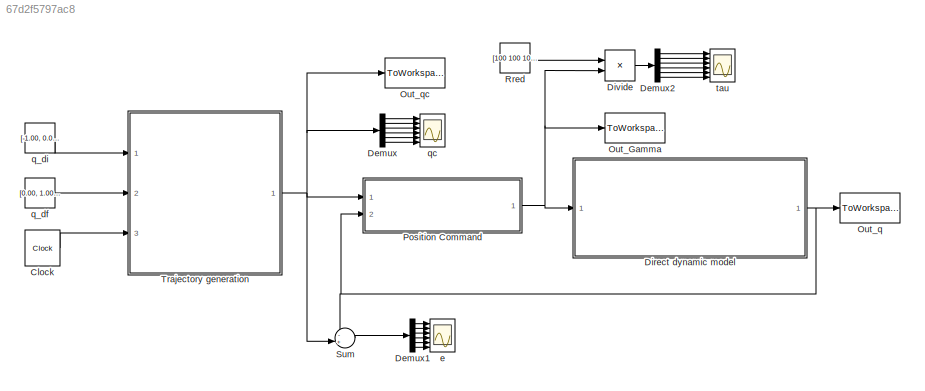
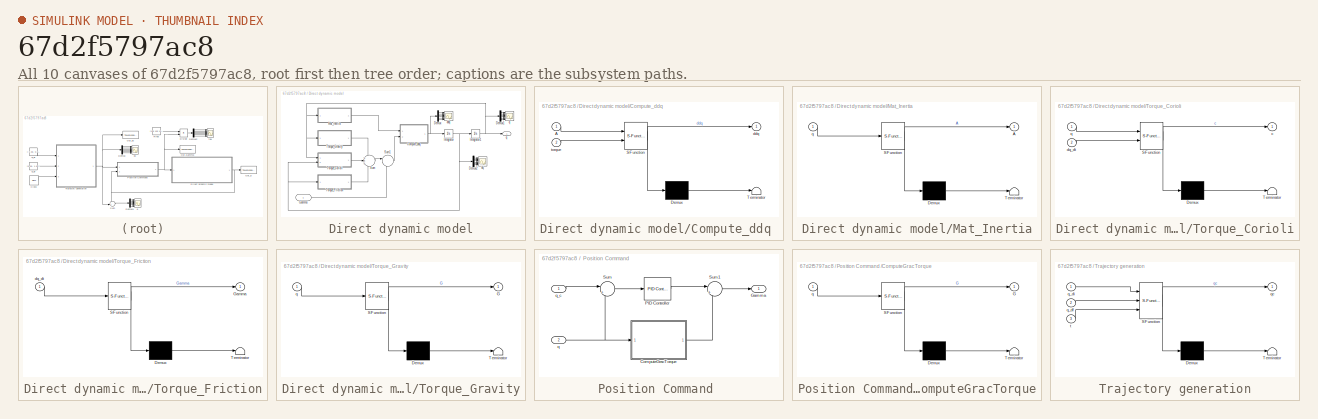
[diagram: thumbnail index - all 10 canvases of the model, root first then tree order]
MODEL slx_67d2f5797ac8
KIND model
CONFIG AbsTol = auto
CONFIG FixedStep = auto
CONFIG MaxStep = auto
CONFIG MinStep = auto
CONFIG RelTol = 1e-3
CONFIG SampleTimeConstraint = Unconstrained
CONFIG Solver = VariableStepAuto
CONFIG SolverMode = Auto
CONFIG SolverName = VariableStepAuto
CONFIG StartTime = 0.0
CONFIG StopTime = 500
BLOCK [Clock] Clock
  Decimation = 1
BLOCK [Demux] Demux
  DisplayOption = bar
  Outputs = 6
  Ports = [1, 6]
BLOCK [Demux] Demux1
  DisplayOption = bar
  Outputs = 6
  Ports = [1, 6]
BLOCK [Demux] Demux2
  DisplayOption = bar
  Outputs = 6
  Ports = [1, 6]
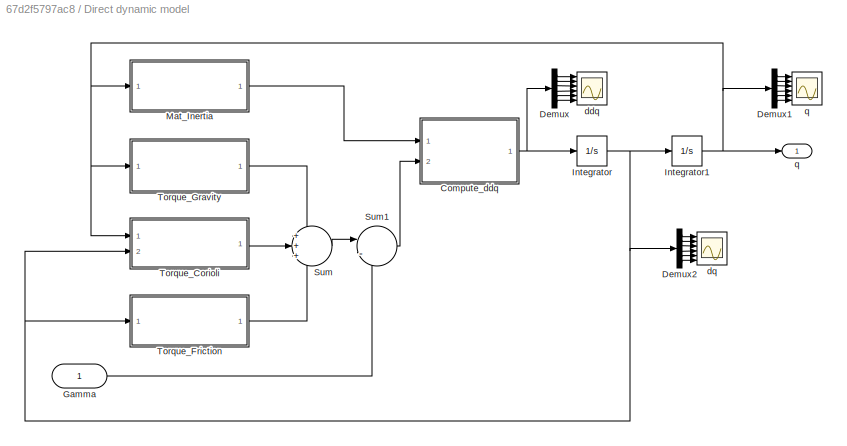
BLOCK [SubSystem] Direct dynamic model
  Ports = [1, 1]
  RequestExecContextInheritance = off
  Variant = off
BLOCK [SubSystem] Direct dynamic model/Compute_ddq 
  ErrorFcn = Stateflow.Translate.translate
  PermitHierarchicalResolution = ExplicitOnly
  Ports = [2, 1]
  RequestExecContextInheritance = off
  SFBlockType = MATLAB Function
  TreatAsAtomicUnit = on
  Variant = off
BLOCK [Demux] Direct dynamic model/Compute_ddq / Demux 
  Outputs = 1
  Ports = [1, 1]
BLOCK [S-Function] Direct dynamic model/Compute_ddq / SFunction 
  EnableBusSupport = on
  FunctionName = sf_sfun
  PortCounts = [2 2]
  Ports = [2, 2]
  SFunctionDeploymentMode = off
  Tag = Stateflow S-Function SimulinkQ20_total 5
BLOCK [Terminator] Direct dynamic model/Compute_ddq / Terminator 
BLOCK [Inport] Direct dynamic model/Compute_ddq /A
  IconDisplay = Port number
BLOCK [Outport] Direct dynamic model/Compute_ddq /ddq
  IconDisplay = Port number
BLOCK [Inport] Direct dynamic model/Compute_ddq /torque
  IconDisplay = Port number
  Port = 2
BLOCK [Demux] Direct dynamic model/Demux
  DisplayOption = bar
  Outputs = 6
  Ports = [1, 6]
BLOCK [Demux] Direct dynamic model/Demux1
  DisplayOption = bar
  Outputs = 6
  Ports = [1, 6]
BLOCK [Demux] Direct dynamic model/Demux2
  DisplayOption = bar
  Outputs = 6
  Ports = [1, 6]
BLOCK [Inport] Direct dynamic model/Gamma
  IconDisplay = Port number
BLOCK [Integrator] Direct dynamic model/Integrator
  Ports = [1, 1]
BLOCK [Integrator] Direct dynamic model/Integrator1
  InitialCondition = [-1.00, 0.00, -1.00, -1.00, -1.00, -1.00]
  Ports = [1, 1]
BLOCK [SubSystem] Direct dynamic model/Mat_Inertia
  ErrorFcn = Stateflow.Translate.translate
  PermitHierarchicalResolution = ExplicitOnly
  Ports = [1, 1]
  RequestExecContextInheritance = off
  SFBlockType = MATLAB Function
  TreatAsAtomicUnit = on
  Variant = off
BLOCK [Demux] Direct dynamic model/Mat_Inertia/ Demux 
  Outputs = 1
  Ports = [1, 1]
BLOCK [S-Function] Direct dynamic model/Mat_Inertia/ SFunction 
  EnableBusSupport = on
  FunctionName = sf_sfun
  PortCounts = [1 2]
  Ports = [1, 2]
  SFunctionDeploymentMode = off
  Tag = Stateflow S-Function SimulinkQ20_total 3
BLOCK [Terminator] Direct dynamic model/Mat_Inertia/ Terminator 
BLOCK [Outport] Direct dynamic model/Mat_Inertia/A
  IconDisplay = Port number
BLOCK [Inport] Direct dynamic model/Mat_Inertia/q
  IconDisplay = Port number
BLOCK [Sum] Direct dynamic model/Sum
  IconShape = round
  InputSameDT = off
  Inputs = +++
  OutDataTypeStr = Inherit: Inherit via internal rule
  Ports = [3, 1]
  SaturateOnIntegerOverflow = off
BLOCK [Sum] Direct dynamic model/Sum1
  IconShape = round
  InputSameDT = off
  Inputs = |-+
  OutDataTypeStr = Inherit: Inherit via internal rule
  Ports = [2, 1]
  SaturateOnIntegerOverflow = off
BLOCK [SubSystem] Direct dynamic model/Torque_Corioli
  ErrorFcn = Stateflow.Translate.translate
  PermitHierarchicalResolution = ExplicitOnly
  Ports = [2, 1]
  RequestExecContextInheritance = off
  SFBlockType = MATLAB Function
  TreatAsAtomicUnit = on
  Variant = off
BLOCK [Demux] Direct dynamic model/Torque_Corioli/ Demux 
  Outputs = 1
  Ports = [1, 1]
BLOCK [S-Function] Direct dynamic model/Torque_Corioli/ SFunction 
  EnableBusSupport = on
  FunctionName = sf_sfun
  PortCounts = [2 2]
  Ports = [2, 2]
  SFunctionDeploymentMode = off
  Tag = Stateflow S-Function SimulinkQ20_total 4
BLOCK [Terminator] Direct dynamic model/Torque_Corioli/ Terminator 
BLOCK [Outport] Direct dynamic model/Torque_Corioli/c
  IconDisplay = Port number
BLOCK [Inport] Direct dynamic model/Torque_Corioli/dq_dt
  IconDisplay = Port number
  Port = 2
BLOCK [Inport] Direct dynamic model/Torque_Corioli/q
  IconDisplay = Port number
BLOCK [SubSystem] Direct dynamic model/Torque_Friction
  ErrorFcn = Stateflow.Translate.translate
  PermitHierarchicalResolution = ExplicitOnly
  Ports = [1, 1]
  RequestExecContextInheritance = off
  SFBlockType = MATLAB Function
  TreatAsAtomicUnit = on
  Variant = off
BLOCK [Demux] Direct dynamic model/Torque_Friction/ Demux 
  Outputs = 1
  Ports = [1, 1]
BLOCK [S-Function] Direct dynamic model/Torque_Friction/ SFunction 
  EnableBusSupport = on
  FunctionName = sf_sfun
  PortCounts = [1 2]
  Ports = [1, 2]
  SFunctionDeploymentMode = off
  Tag = Stateflow S-Function SimulinkQ20_total 6
BLOCK [Terminator] Direct dynamic model/Torque_Friction/ Terminator 
BLOCK [Outport] Direct dynamic model/Torque_Friction/Gamma
  IconDisplay = Port number
BLOCK [Inport] Direct dynamic model/Torque_Friction/dq_dt
  IconDisplay = Port number
BLOCK [SubSystem] Direct dynamic model/Torque_Gravity
  ErrorFcn = Stateflow.Translate.translate
  PermitHierarchicalResolution = ExplicitOnly
  Ports = [1, 1]
  RequestExecContextInheritance = off
  SFBlockType = MATLAB Function
  TreatAsAtomicUnit = on
  Variant = off
BLOCK [Demux] Direct dynamic model/Torque_Gravity/ Demux 
  Outputs = 1
  Ports = [1, 1]
BLOCK [S-Function] Direct dynamic model/Torque_Gravity/ SFunction 
  EnableBusSupport = on
  FunctionName = sf_sfun
  PortCounts = [1 2]
  Ports = [1, 2]
  SFunctionDeploymentMode = off
  Tag = Stateflow S-Function SimulinkQ20_total 7
BLOCK [Terminator] Direct dynamic model/Torque_Gravity/ Terminator 
BLOCK [Outport] Direct dynamic model/Torque_Gravity/G
  IconDisplay = Port number
BLOCK [Inport] Direct dynamic model/Torque_Gravity/q
  IconDisplay = Port number
BLOCK [Scope] Direct dynamic model/ddq
  NumInputPorts = 6
  Ports = [6]
  ScopeSpecificationString = Simulink.scopes.TimeScopeBlockCfg('CurrentConfiguration', extmgr.ConfigurationSet(extmgr.Configuration('Core','General UI',true),extmgr.Configuration('Core','Source UI',true),extmgr.Configuration('Sources','WiredSimulink',true,'DataLoggingLimitDataPoints',true,'DataLoggingSaveFormat','Array','DataLoggingDecimation','1','DataLoggingDecimateData',true,'DataLoggingVariableName','ScopeData1'),extmgr.C...<+4919ch>
BLOCK [Scope] Direct dynamic model/dq 
  NumInputPorts = 6
  Ports = [6]
  ScopeSpecificationString = Simulink.scopes.TimeScopeBlockCfg('CurrentConfiguration', extmgr.ConfigurationSet(extmgr.Configuration('Core','General UI',true),extmgr.Configuration('Core','Source UI',true),extmgr.Configuration('Sources','WiredSimulink',true,'DataLoggingVariableName','ScopeData2','DataLoggingLimitDataPoints',true,'DataLoggingSaveFormat','Array','DataLoggingDecimation','1','DataLoggingDecimateData',true),extmgr.C...<+4862ch>
BLOCK [Outport] Direct dynamic model/q
  IconDisplay = Port number
BLOCK [Scope] Direct dynamic model/q 
  NumInputPorts = 6
  Ports = [6]
  ScopeSpecificationString = Simulink.scopes.TimeScopeBlockCfg('CurrentConfiguration', extmgr.ConfigurationSet(extmgr.Configuration('Core','General UI',true),extmgr.Configuration('Core','Source UI',true),extmgr.Configuration('Sources','WiredSimulink',true,'DataLoggingVariableName','ScopeData3','DataLoggingLimitDataPoints',true,'DataLoggingSaveFormat','Array','DataLoggingDecimation','1','DataLoggingDecimateData',true),extmgr.C...<+4860ch>
BLOCK [Product] Divide
  InputSameDT = off
  Inputs = /*
  OutDataTypeStr = Inherit: Inherit via internal rule
  Ports = [2, 1]
  RndMeth = Floor
  SaturateOnIntegerOverflow = off
BLOCK [ToWorkspace] Out_Gamma
  FixptAsFi = on
  MaxDataPoints = inf
  Ports = [1]
  SampleTime = -1
  Save2DSignal = 3-D array (concatenate along third dimension)
  SaveFormat = Timeseries
  VariableName = Gamma
BLOCK [ToWorkspace] Out_q
  FixptAsFi = on
  MaxDataPoints = inf
  Ports = [1]
  SampleTime = -1
  Save2DSignal = 3-D array (concatenate along third dimension)
  SaveFormat = Timeseries
  VariableName = q
BLOCK [ToWorkspace] Out_qc
  FixptAsFi = on
  MaxDataPoints = inf
  Ports = [1]
  SampleTime = -1
  Save2DSignal = 3-D array (concatenate along third dimension)
  SaveFormat = Timeseries
  VariableName = qc
BLOCK [SubSystem] Position Command 
  Ports = [2, 1]
  RequestExecContextInheritance = off
  Variant = off
BLOCK [SubSystem] Position Command /ComputeGracTorque
  ErrorFcn = Stateflow.Translate.translate
  PermitHierarchicalResolution = ExplicitOnly
  Ports = [1, 1]
  RequestExecContextInheritance = off
  SFBlockType = MATLAB Function
  TreatAsAtomicUnit = on
  Variant = off
BLOCK [Demux] Position Command /ComputeGracTorque/ Demux 
  Outputs = 1
  Ports = [1, 1]
BLOCK [S-Function] Position Command /ComputeGracTorque/ SFunction 
  EnableBusSupport = on
  FunctionName = sf_sfun
  PortCounts = [1 2]
  Ports = [1, 2]
  SFunctionDeploymentMode = off
  Tag = Stateflow S-Function SimulinkQ20_total 1
BLOCK [Terminator] Position Command /ComputeGracTorque/ Terminator 
BLOCK [Outport] Position Command /ComputeGracTorque/G
  IconDisplay = Port number
BLOCK [Inport] Position Command /ComputeGracTorque/q
  IconDisplay = Port number
BLOCK [Outport] Position Command /Gamma
  IconDisplay = Port number
BLOCK [Reference] Position Command /PID Controller  REF=simulink/Continuous/PID Controller
  Ports = [1, 1]
  SourceBlock = simulink/Continuous/PID Controller
  SourceType = PID 1dof
BLOCK [Sum] Position Command /Sum
  IconShape = round
  InputSameDT = off
  Inputs = |+-
  OutDataTypeStr = Inherit: Inherit via internal rule
  Ports = [2, 1]
  SaturateOnIntegerOverflow = off
BLOCK [Sum] Position Command /Sum1
  IconShape = round
  InputSameDT = off
  Inputs = |++
  OutDataTypeStr = Inherit: Inherit via internal rule
  Ports = [2, 1]
  SaturateOnIntegerOverflow = off
BLOCK [Inport] Position Command /q
  IconDisplay = Port number
  Port = 2
BLOCK [Inport] Position Command /q_c
  IconDisplay = Port number
BLOCK [Constant] Rred
  Value = [100 100 100 70 70 70]
BLOCK [Sum] Sum
  IconShape = round
  InputSameDT = off
  Inputs = -+|
  OutDataTypeStr = Inherit: Inherit via internal rule
  Ports = [2, 1]
  SaturateOnIntegerOverflow = off
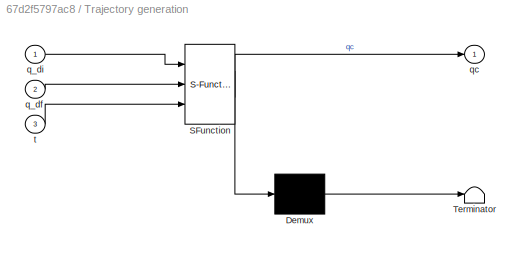
BLOCK [SubSystem] Trajectory generation
  ErrorFcn = Stateflow.Translate.translate
  PermitHierarchicalResolution = ExplicitOnly
  Ports = [3, 1]
  RequestExecContextInheritance = off
  SFBlockType = MATLAB Function
  TreatAsAtomicUnit = on
  Variant = off
BLOCK [Demux] Trajectory generation/ Demux 
  Outputs = 1
  Ports = [1, 1]
BLOCK [S-Function] Trajectory generation/ SFunction 
  EnableBusSupport = on
  FunctionName = sf_sfun
  PortCounts = [3 2]
  Ports = [3, 2]
  SFunctionDeploymentMode = off
  Tag = Stateflow S-Function SimulinkQ20_total 2
BLOCK [Terminator] Trajectory generation/ Terminator 
BLOCK [Inport] Trajectory generation/q_df
  IconDisplay = Port number
  Port = 2
BLOCK [Inport] Trajectory generation/q_di
  IconDisplay = Port number
BLOCK [Outport] Trajectory generation/qc
  IconDisplay = Port number
BLOCK [Inport] Trajectory generation/t
  IconDisplay = Port number
  Port = 3
BLOCK [Scope] e
  NumInputPorts = 6
  Ports = [6]
  ScopeSpecificationString = Simulink.scopes.TimeScopeBlockCfg('CurrentConfiguration', extmgr.ConfigurationSet(extmgr.Configuration('Core','General UI',true,'DisplayFullSourceName',true),extmgr.Configuration('Core','Source UI',true),extmgr.Configuration('Sources','WiredSimulink',true,'DataLoggingVariableName','ScopeData1'),extmgr.Configuration('Visuals','Time Domain',true,'TimeAxisLabels','All','SerializedDisplays',{struct('M...<+4901ch>
BLOCK [Constant] q_df
  Value = [0.00, 1.00, 0.00, 0.00, 0.00, 0.00]
BLOCK [Constant] q_di
  Value = [-1.00, 0.00, -1.00, -1.00, -1.00, -1.00]
BLOCK [Scope] qc
  NumInputPorts = 6
  Ports = [6]
  ScopeSpecificationString = Simulink.scopes.TimeScopeBlockCfg('CurrentConfiguration', extmgr.ConfigurationSet(extmgr.Configuration('Core','General UI',true,'DisplayFullSourceName',true),extmgr.Configuration('Core','Source UI',true),extmgr.Configuration('Sources','WiredSimulink',true),extmgr.Configuration('Visuals','Time Domain',true,'TimeAxisLabels','All','SerializedDisplays',{struct('MinYLimReal','-1.125','MaxYLimReal','0.1...<+4878ch>
BLOCK [Scope] tau
  NumInputPorts = 6
  Ports = [6]
  ScopeSpecificationString = Simulink.scopes.TimeScopeBlockCfg('CurrentConfiguration', extmgr.ConfigurationSet(extmgr.Configuration('Core','General UI',true),extmgr.Configuration('Core','Source UI',true),extmgr.Configuration('Sources','WiredSimulink',true,'DataLoggingVariableName','ScopeData2'),extmgr.Configuration('Visuals','Time Domain',true,'TimeAxisLabels','All','SerializedDisplays',{struct('MinYLimReal','-0.00005','MaxYL...<+4760ch>
LINE Clock:1 -> Trajectory generation:3
LINE Demux1:1 -> e:1
LINE Demux1:2 -> e:2
LINE Demux1:3 -> e:3
LINE Demux1:4 -> e:4
LINE Demux1:5 -> e:5
LINE Demux1:6 -> e:6
LINE Demux2:1 -> tau:1
LINE Demux2:2 -> tau:2
LINE Demux2:3 -> tau:3
LINE Demux2:4 -> tau:4
LINE Demux2:5 -> tau:5
LINE Demux2:6 -> tau:6
LINE Demux:1 -> qc:1
LINE Demux:2 -> qc:2
LINE Demux:3 -> qc:3
LINE Demux:4 -> qc:4
LINE Demux:5 -> qc:5
LINE Demux:6 -> qc:6
NET Direct dynamic model/Compute_ddq :1 -> Direct dynamic model/Demux:1, Direct dynamic model/Integrator:1
LINE Direct dynamic model/Demux1:1 -> Direct dynamic model/q :1
LINE Direct dynamic model/Demux1:2 -> Direct dynamic model/q :2
LINE Direct dynamic model/Demux1:3 -> Direct dynamic model/q :3
LINE Direct dynamic model/Demux1:4 -> Direct dynamic model/q :4
LINE Direct dynamic model/Demux1:5 -> Direct dynamic model/q :5
LINE Direct dynamic model/Demux1:6 -> Direct dynamic model/q :6
LINE Direct dynamic model/Demux2:1 -> Direct dynamic model/dq :1
LINE Direct dynamic model/Demux2:2 -> Direct dynamic model/dq :2
LINE Direct dynamic model/Demux2:3 -> Direct dynamic model/dq :3
LINE Direct dynamic model/Demux2:4 -> Direct dynamic model/dq :4
LINE Direct dynamic model/Demux2:5 -> Direct dynamic model/dq :5
LINE Direct dynamic model/Demux2:6 -> Direct dynamic model/dq :6
LINE Direct dynamic model/Demux:1 -> Direct dynamic model/ddq:1
LINE Direct dynamic model/Demux:2 -> Direct dynamic model/ddq:2
LINE Direct dynamic model/Demux:3 -> Direct dynamic model/ddq:3
LINE Direct dynamic model/Demux:4 -> Direct dynamic model/ddq:4
LINE Direct dynamic model/Demux:5 -> Direct dynamic model/ddq:5
LINE Direct dynamic model/Demux:6 -> Direct dynamic model/ddq:6
LINE Direct dynamic model/Gamma:1 -> Direct dynamic model/Sum1:2
NET Direct dynamic model/Integrator1:1 -> Direct dynamic model/Demux1:1, Direct dynamic model/Mat_Inertia:1, Direct dynamic model/Torque_Corioli:1, Direct dynamic model/Torque_Gravity:1, Direct dynamic model/q:1
NET Direct dynamic model/Integrator:1 -> Direct dynamic model/Demux2:1, Direct dynamic model/Integrator1:1, Direct dynamic model/Torque_Corioli:2, Direct dynamic model/Torque_Friction:1
LINE Direct dynamic model/Mat_Inertia:1 -> Direct dynamic model/Compute_ddq :1
LINE Direct dynamic model/Sum1:1 -> Direct dynamic model/Compute_ddq :2
LINE Direct dynamic model/Sum:1 -> Direct dynamic model/Sum1:1
LINE Direct dynamic model/Torque_Corioli:1 -> Direct dynamic model/Sum:2
LINE Direct dynamic model/Torque_Friction:1 -> Direct dynamic model/Sum:3
LINE Direct dynamic model/Torque_Gravity:1 -> Direct dynamic model/Sum:1
NET Direct dynamic model:1 -> Out_q:1, Position Command :2, Sum:1
LINE Divide:1 -> Demux2:1
LINE Position Command /ComputeGracTorque:1 -> Position Command /Sum1:2
LINE Position Command /PID Controller:1 -> Position Command /Sum1:1
LINE Position Command /Sum1:1 -> Position Command /Gamma:1
LINE Position Command /Sum:1 -> Position Command /PID Controller:1
NET Position Command /q:1 -> Position Command /ComputeGracTorque:1, Position Command /Sum:2
LINE Position Command /q_c:1 -> Position Command /Sum:1
NET Position Command :1 -> Direct dynamic model:1, Divide:2, Out_Gamma:1
LINE Rred:1 -> Divide:1
LINE Sum:1 -> Demux1:1
NET Trajectory generation:1 -> Demux:1, Out_qc:1, Position Command :1, Sum:2
LINE q_df:1 -> Trajectory generation:2
LINE q_di:1 -> Trajectory generation:1
note: NET lines group one-source signal fan-out (src -> all destinations, sorted); 1:1 wires keep LINE
CHART Position Command
/ComputeGracTorque states=1 transitions=1
  STATE_LABEL 'eML_blk_kernel()'
  STATE_LABEL 'SCRIPT:\nfunction G = ComputeGravTorque(q)\n\n    %Parameters\n    m=[15 10 1 7 1 0.5];\n    x_G1 = 0; y_G1 = 0; z_G1 = -0.25;\n    x_G2 = 0.35; y_G2 = 0; z_G2 = 0;\n    x_G3 = 0; y_G3 = -0.1; z_G3 = 0;\n    x_G4 = 0; y_G4 = 0; z_G4 = 0;\n    x_G5 = 0; y_G5 = 0; z_G5 = 0;\n    x_G6 = 0; y_G6 = 0; z_G6 = 0;\n    x_G = [x_G1 x_G2 x_G3 x_G4 x_G5 x_G6];\n    y_G = [y_G1 y_G2 y_G3 y_G4 y_G5 y_G6];\n    z_G = [z_G1 ...<+527ch>'
CHART Trajectory generation states=1 transitions=1
  STATE_LABEL 'eML_blk_kernel()'
  STATE_LABEL 'SCRIPT:\nfunction qc = GenTraj(q_di, q_df, t)\n    tf = 500;\n    D = q_df - q_di;\n    r = 10*(t/tf)^3 -15*(t/tf)^4 + 6*(t/tf)^5;\n    qc = q_di + r*D\nend'
CHART Direct dynamic model/Mat_Inertia states=1 transitions=1
  STATE_LABEL 'eML_blk_kernel()'
  STATE_LABEL "SCRIPT:\nfunction A = ComputeMatIner(q)\n    % parameters\n    m=[15 10 1 7 1 0.5];   \n    x_G1 = 0; y_G1 = 0; z_G1 = -0.25;\n    x_G2 = 0.35; y_G2 = 0; z_G2 = 0;\n    x_G3 = 0; y_G3 = -0.1; z_G3 = 0;\n    x_G4 = 0; y_G4 = 0; z_G4 = 0;\n    x_G5 = 0; y_G5 = 0; z_G5 = 0;\n    x_G6 = 0; y_G6 = 0; z_G6 = 0;\n    x_G = [x_G1 x_G2 x_G3 x_G4 x_G5 x_G6]';\n    y_G = [y_G1 y_G2 y_G3 y_G4 y_G5 y_G6]';\n    z_G = [z_G...<+1744ch>"
CHART Direct dynamic model/Torque_Corioli states=1 transitions=1
  STATE_LABEL 'eML_blk_kernel()'
  STATE_LABEL "SCRIPT:\nfunction c=ComputeCCTorques(q,dq_dt)\n\n    % Initialisation\n    c=zeros(size(q))';\n\n    % Parameters\n    m=[15 10 1 7 1 0.5]';\n    iI = zeros(3,3,length(q));\n    iI(:,:,1)=[0.80 0 0.05 ; 0 0.80 0 ; 0.05  0  0.10];\n    iI(:,:,2)=[0.10  0  0.10; 0  1.50 0 ; 0.10  0  1.50];\n    iI(:,:,3)=[0.05 0 0 ; 0 0.01 0 ; 0 0 0.05];\n    iI(:,:,4)=[0.50 0 0 ; 0 0.50 0 ; 0 0 0.05];\n    iI(:,:,5)=[0.01 0 0 ;...<+3608ch>"
CHART Direct dynamic model/Compute_ddq
 states=1 transitions=1
  STATE_LABEL 'eML_blk_kernel()'
  STATE_LABEL 'SCRIPT:\nfunction ddq = fcn(A, torque)\n%#codegen\nddq = inv(A)*torque\n% ddq = A\\torque;\n'
CHART Direct dynamic model/Torque_Friction states=1 transitions=1
  STATE_LABEL 'eML_blk_kernel()'
  STATE_LABEL 'SCRIPT:\nfunction Gamma = fcn(dq_dt)\n    % parameters\n    Fv = 10*ones(length(dq_dt), 1);\n    Gamma = diag(dq_dt)* Fv;\nend'
CHART Direct dynamic model/Torque_Gravity states=1 transitions=1
  STATE_LABEL 'eML_blk_kernel()'
  STATE_LABEL 'SCRIPT:\nfunction G = ComputeGravTorque(q)\n\n    %Parameters\n    m=[15 10 1 7 1 0.5];\n    x_G1 = 0; y_G1 = 0; z_G1 = -0.25;\n    x_G2 = 0.35; y_G2 = 0; z_G2 = 0;\n    x_G3 = 0; y_G3 = -0.1; z_G3 = 0;\n    x_G4 = 0; y_G4 = 0; z_G4 = 0;\n    x_G5 = 0; y_G5 = 0; z_G5 = 0;\n    x_G6 = 0; y_G6 = 0; z_G6 = 0;\n    x_G = [x_G1 x_G2 x_G3 x_G4 x_G5 x_G6];\n    y_G = [y_G1 y_G2 y_G3 y_G4 y_G5 y_G6];\n    z_G = [z_G1 ...<+527ch>'
